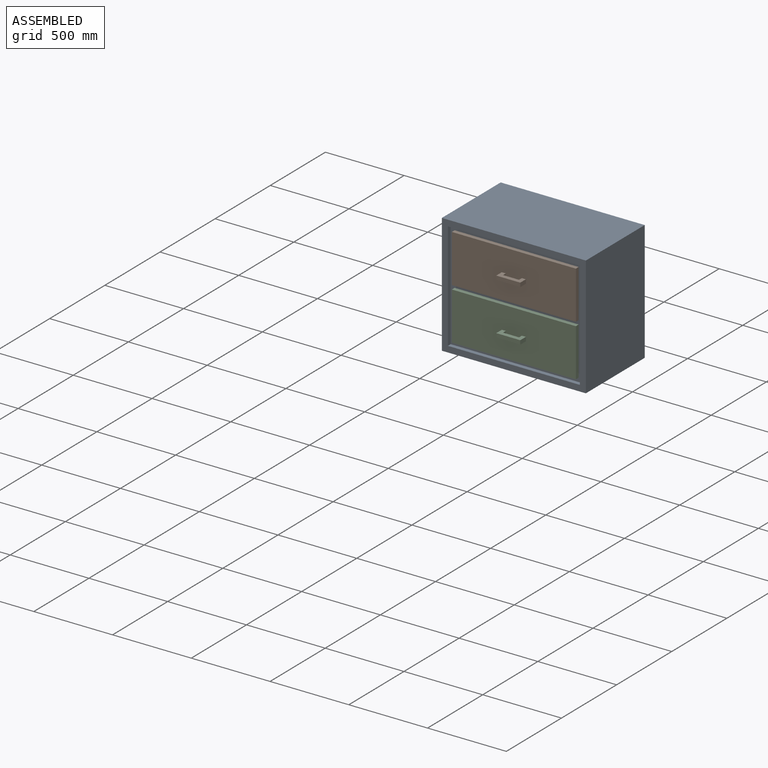
[diagram: assembled view]
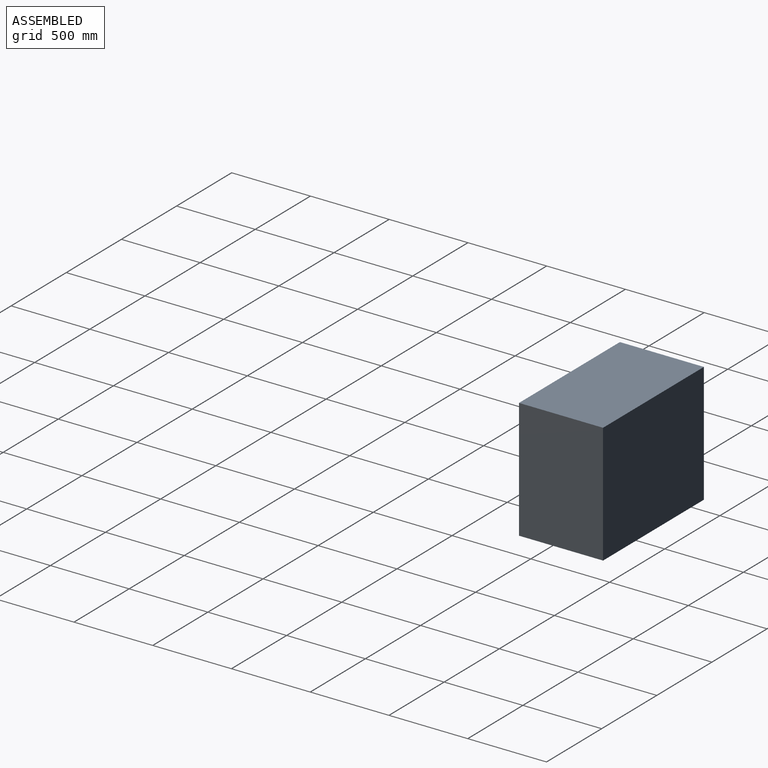
[diagram: assembled view, second angle]
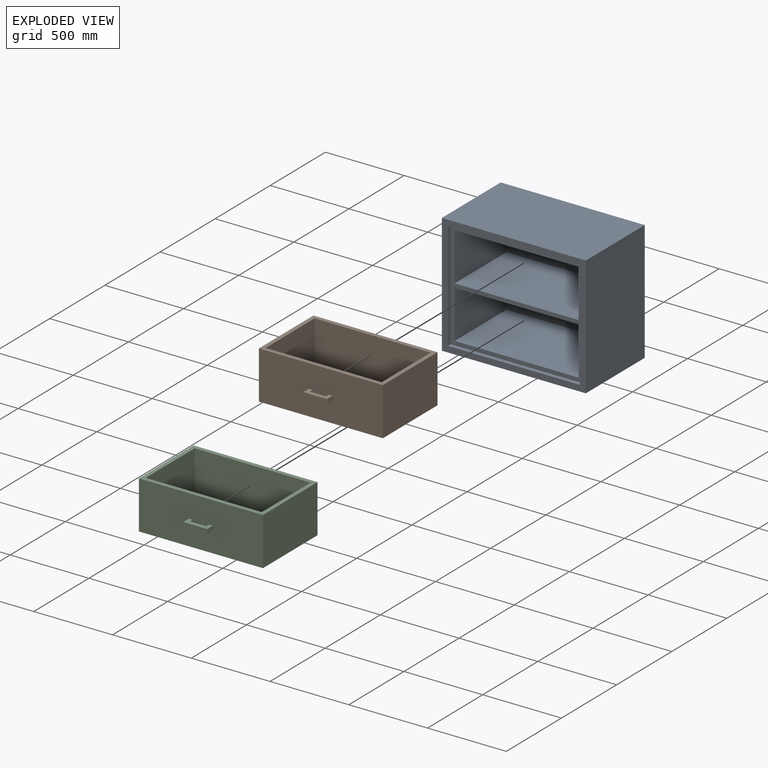
[diagram: exploded view]
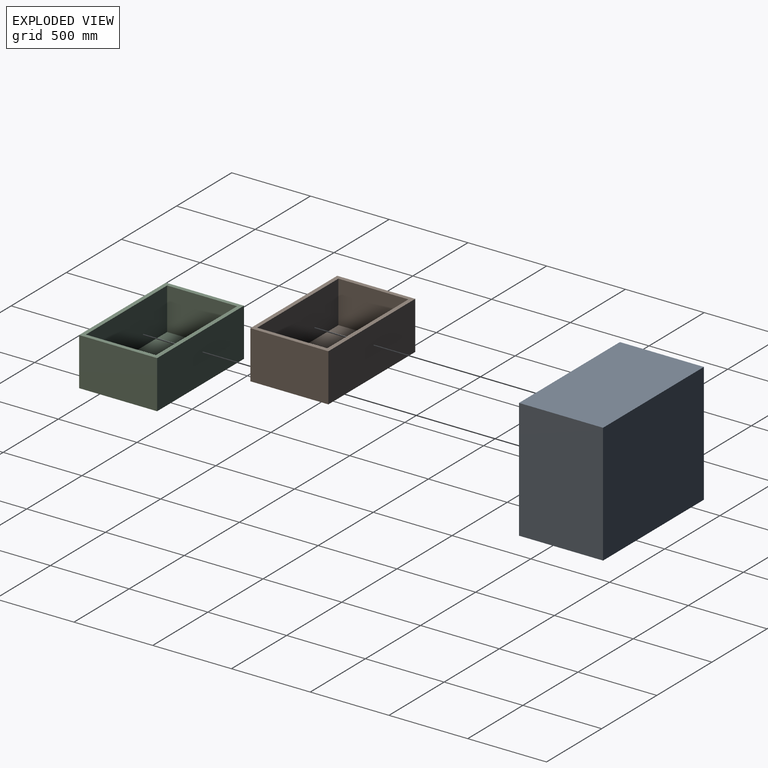
[diagram: exploded view, second angle]
ASSEMBLY  parts=3 mates=2
PART A: 21 faces, bbox 914.4x533.4x762 mm
  f0: plane 914.4x762mm, normal (0,-1,0), area 121935.2mm2, adj f2,f3,f4,f5,f6,f7,f8,f9
  f1: plane 914.4x762mm, normal (0,1,0), area 696772.8mm2, adj f2,f3,f4,f5
  f2: plane 762x533.4mm, normal (-1,0,0), area 406450.8mm2, adj f0,f1,f4,f5
  f3: plane 762x533.4mm, normal (1,0,0), area 406450.8mm2, adj f0,f1,f4,f5
  f4: plane 914.4x533.4mm, normal (0,0,1), area 487741mm2, adj f0,f1,f2,f3
  f5: plane 914.4x533.4mm, normal (0,0,-1), area 487741mm2, adj f0,f1,f2,f3
  f6: plane 838.2x25.4mm, normal (0,0,1), area 21290.3mm2, adj f0,f7,f9,f10
  f7: plane 685.8x25.4mm, normal (-1,0,0), area 17419.3mm2, adj f0,f6,f8,f10
  f8: plane 838.2x25.4mm, normal (0,0,-1), area 21290.3mm2, adj f0,f7,f9,f10
  f9: plane 685.8x25.4mm, normal (1,0,0), area 17419.3mm2, adj f0,f6,f8,f10
  f10: plane 838.2x685.8mm, normal (0,-1,0), area 94838.5mm2, adj f6,f7,f8,f9,f11,f12,f13,f14
  f11: plane 787.4x469.9mm, normal (0,0,1), area 369999.3mm2, adj f10,f12,f14,f15
  f12: plane 469.9x304.8mm, normal (-1,0,0), area 143225.5mm2, adj f10,f11,f13,f15
  f13: plane 787.4x469.9mm, normal (0,0,-1), area 369999.3mm2, adj f10,f12,f14,f15
  f14: plane 469.9x304.8mm, normal (1,0,0), area 143225.5mm2, adj f10,f11,f13,f15
  f15: plane 787.4x304.8mm, normal (0,-1,0), area 239999.5mm2, adj f11,f12,f13,f14
  f16: plane 787.4x469.9mm, normal (0,0,1), area 369999.3mm2, adj f10,f17,f19,f20
  f17: plane 469.9x304.8mm, normal (-1,0,0), area 143225.5mm2, adj f10,f16,f18,f20
  f18: plane 787.4x469.9mm, normal (0,0,-1), area 369999.3mm2, adj f10,f17,f19,f20
  f19: plane 469.9x304.8mm, normal (1,0,0), area 143225.5mm2, adj f10,f16,f18,f20
  f20: plane 787.4x304.8mm, normal (0,-1,0), area 239999.5mm2, adj f16,f17,f18,f19
PART B: 23 faces, bbox 787.4x546.1x304.8 mm
  f0: plane 25.4x0mm, normal (0,-1,0), area 0mm2, adj f1,f2,f21
  f1: plane 787.4x469.9mm, normal (0,0,1), area 42580.5mm2, adj f0,f3,f4,f10,f17,f19,f20,f21
  f2: plane 787.4x495.3mm, normal (0,0,1), area 20000.2mm2, adj f0,f3,f4,f7,f9,f10,f17,f18
  f3: plane 495.3x304.8mm, normal (1,0,0), area 150969.1mm2, adj f1,f2,f7,f8,f17
  f4: plane 469.9x0mm, normal (-1,0,0), area 1.7mm2, adj f1,f2,f10,f17
  f5: plane 25.4x25.4mm, normal (-1,0,0), area 645.2mm2, adj f7,f11,f13,f16
  f6: plane 25.4x25.4mm, normal (1,0,0), area 645.2mm2, adj f7,f11,f13,f16
  f7: plane 787.4x304.8mm, normal (0,-1,0), area 238709.2mm2, adj f2,f3,f5,f6,f8,f9,f11,f12
  f8: plane 787.4x495.3mm, normal (0,0,-1), area 389999.2mm2, adj f3,f7,f9,f17
  f9: plane 495.3x304.8mm, normal (-1,0,0), area 150967.4mm2, adj f2,f7,f8,f17
  f10: plane 25.4x0mm, normal (0,-1,0), area 0.1mm2, adj f1,f2,f4,f20
  f11: plane 152.4x50.8mm, normal (0,0,1), area 5161.3mm2, adj f5,f6,f7,f12,f14,f15,f16
  f12: plane 50.8x25.4mm, normal (-1,0,0), area 1290.3mm2, adj f7,f11,f13,f14
  f13: plane 152.4x50.8mm, normal (0,0,-1), area 5161.3mm2, adj f5,f6,f7,f12,f14,f15,f16
  f14: plane 152.4x25.4mm, normal (0,-1,0), area 3871mm2, adj f11,f12,f13,f15
  f15: plane 50.8x25.4mm, normal (1,0,0), area 1290.3mm2, adj f7,f11,f13,f14
  f16: plane 101.6x25.4mm, normal (0,1,0), area 2580.6mm2, adj f5,f6,f11,f13
  f17: plane 787.4x304.8mm, normal (0,1,0), area 240002.3mm2, adj f1,f2,f3,f4,f8,f9
  f18: plane 736.6x266.7mm, normal (0,1,0), area 196448.4mm2, adj f2,f20,f21,f22
  f19: plane 736.6x266.7mm, normal (0,-1,0), area 196451.1mm2, adj f1,f20,f21,f22
  f20: plane 444.5x266.7mm, normal (1,0,0), area 118548.1mm2, adj f1,f10,f18,f19,f22
  f21: plane 444.5x266.7mm, normal (-1,0,0), area 118548.1mm2, adj f0,f1,f18,f19,f22
  f22: plane 736.6x444.5mm, normal (0,0,1), area 327418.4mm2, adj f18,f19,f20,f21
PART C: same geometry as B
PLACE A t=(86.64,1227.35,-528.72)mm fixed
PLACE B t=(86.64,1227.35,-528.73)mm
PLACE C t=(86.64,1227.35,-858.93)mm
MATE slider A.f15 <-> C.f17  axis (0,-1,0) through (379.46,1806.37,-312.82)mm
MATE slider A.f20 <-> B.f17  axis (0,-1,0) through (379.46,1806.37,17.38)mm
